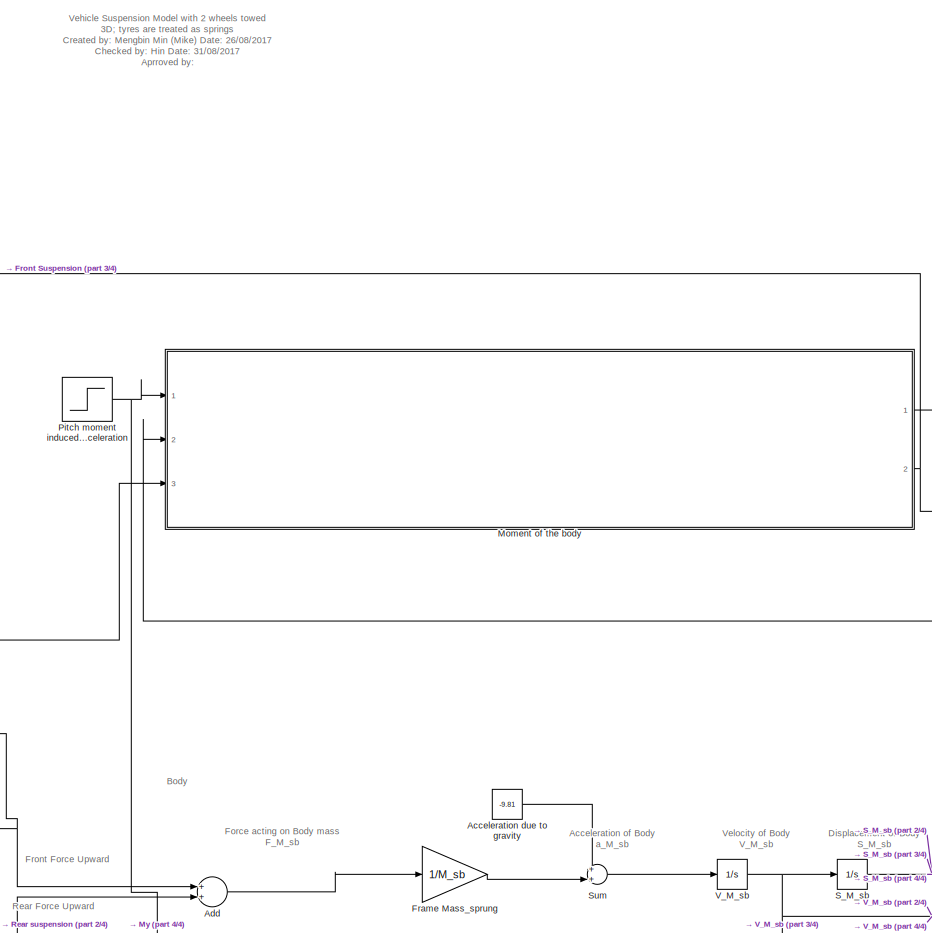
[diagram: root canvas - part 1/4, center side, full height]
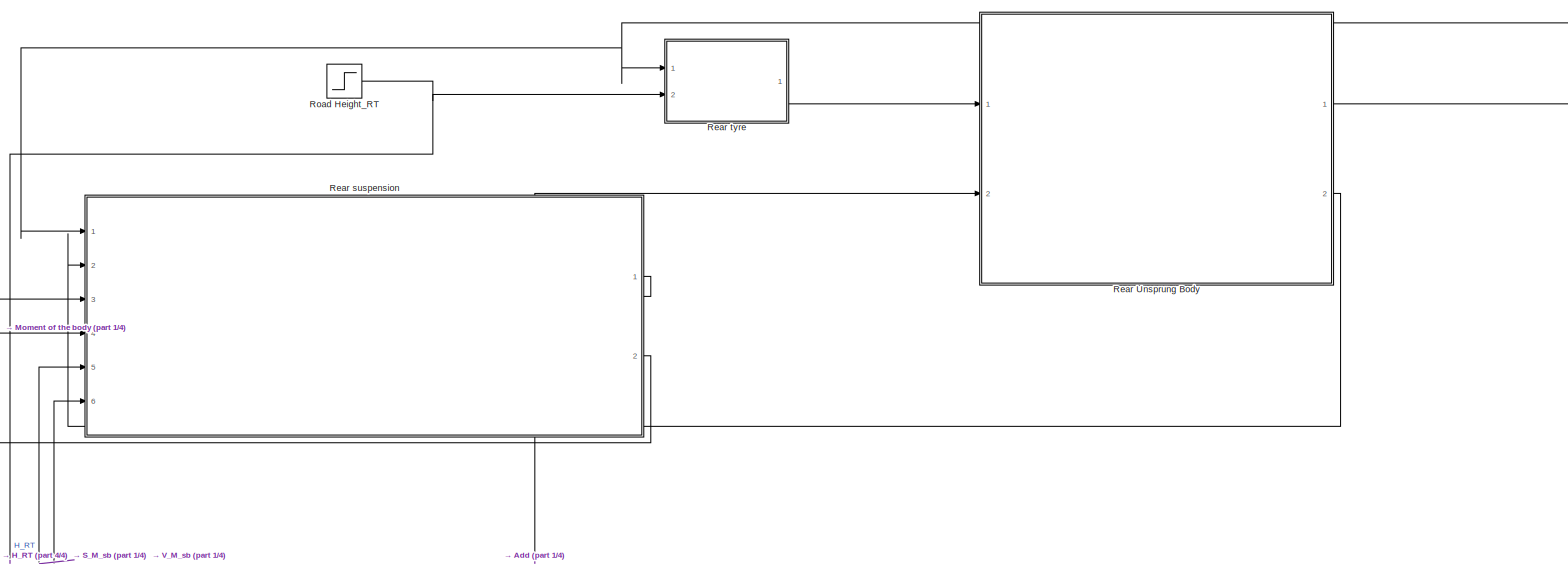
[diagram: root canvas - part 2/4, middle right region]
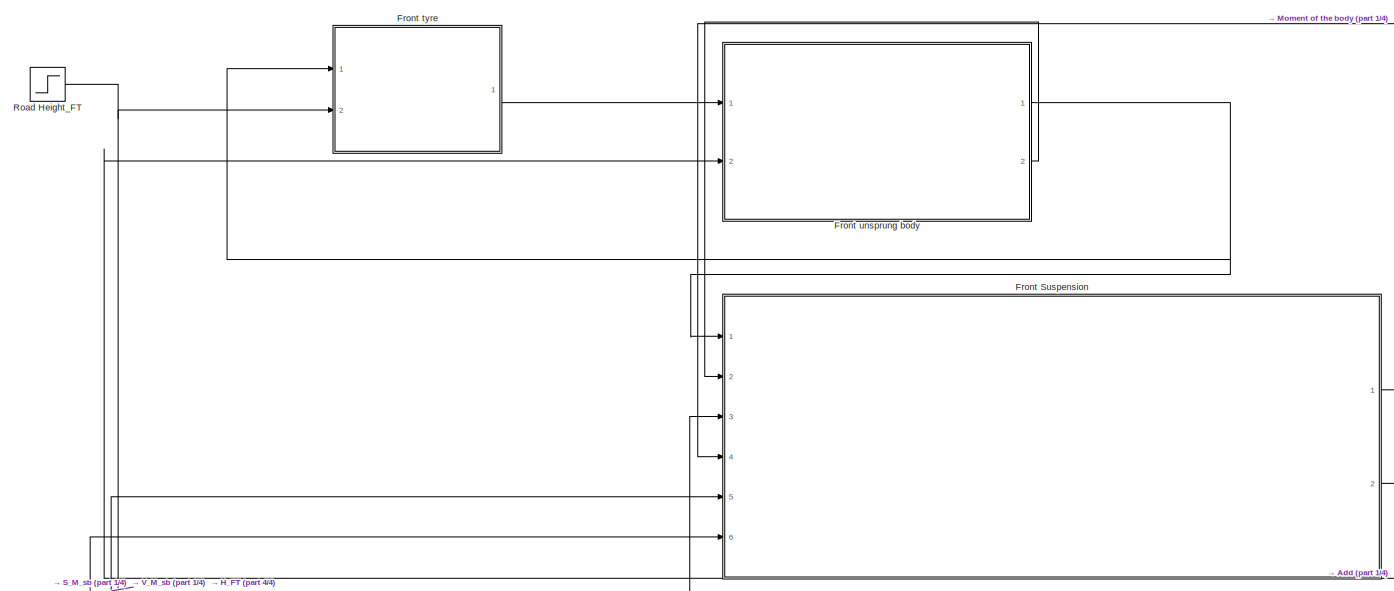
[diagram: root canvas - part 3/4, middle left region]
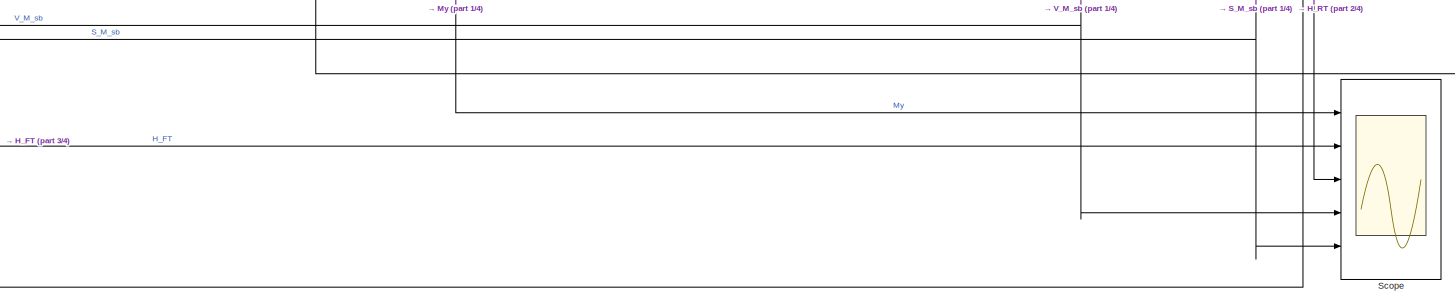
[diagram: root canvas - part 4/4, bottom center region]
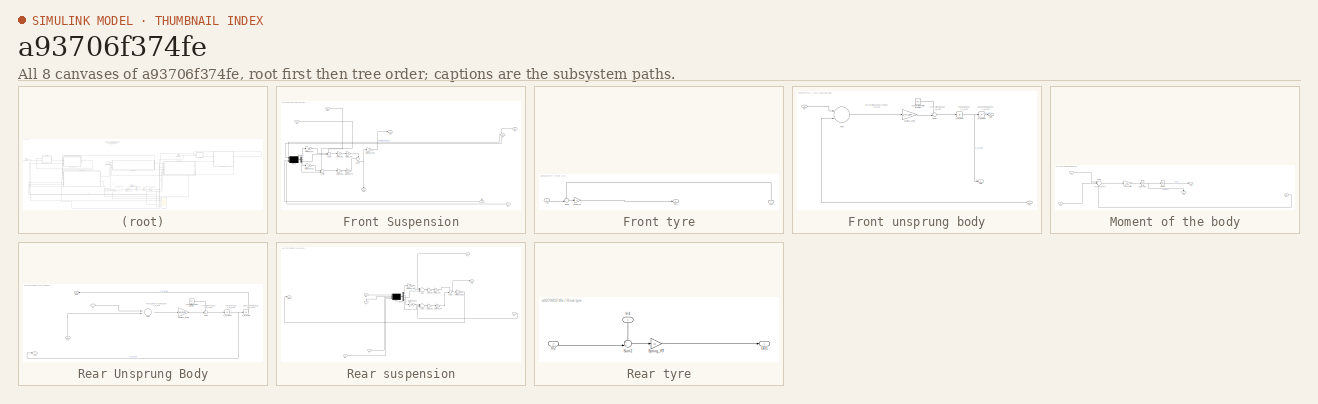
[diagram: thumbnail index - all 8 canvases of the model, root first then tree order]
MODEL slx_a93706f374fe
KIND model
CONFIG AbsTol = auto
CONFIG FixedStep = auto
CONFIG MaxStep = auto
CONFIG MinStep = auto
CONFIG RelTol = 1e-3
CONFIG SampleTimeConstraint = Unconstrained
CONFIG Solver = VariableStepAuto
CONFIG SolverMode = Auto
CONFIG SolverName = VariableStepAuto
CONFIG StartTime = 0.0
CONFIG StopTime = 100
BLOCK [Constant] Acceleration due to gravity
  Value = -9.81
BLOCK [Sum] Add
  InputSameDT = off
  OutDataTypeStr = Inherit: Inherit via internal rule
  Ports = [2, 1]
  SaturateOnIntegerOverflow = off
BLOCK [Gain] Frame Mass_sprung
  Gain = 1/M_sb
  OutDataTypeStr = Inherit: Inherit via internal rule
  ParamDataTypeStr = Inherit: Inherit via internal rule
  SaturateOnIntegerOverflow = off
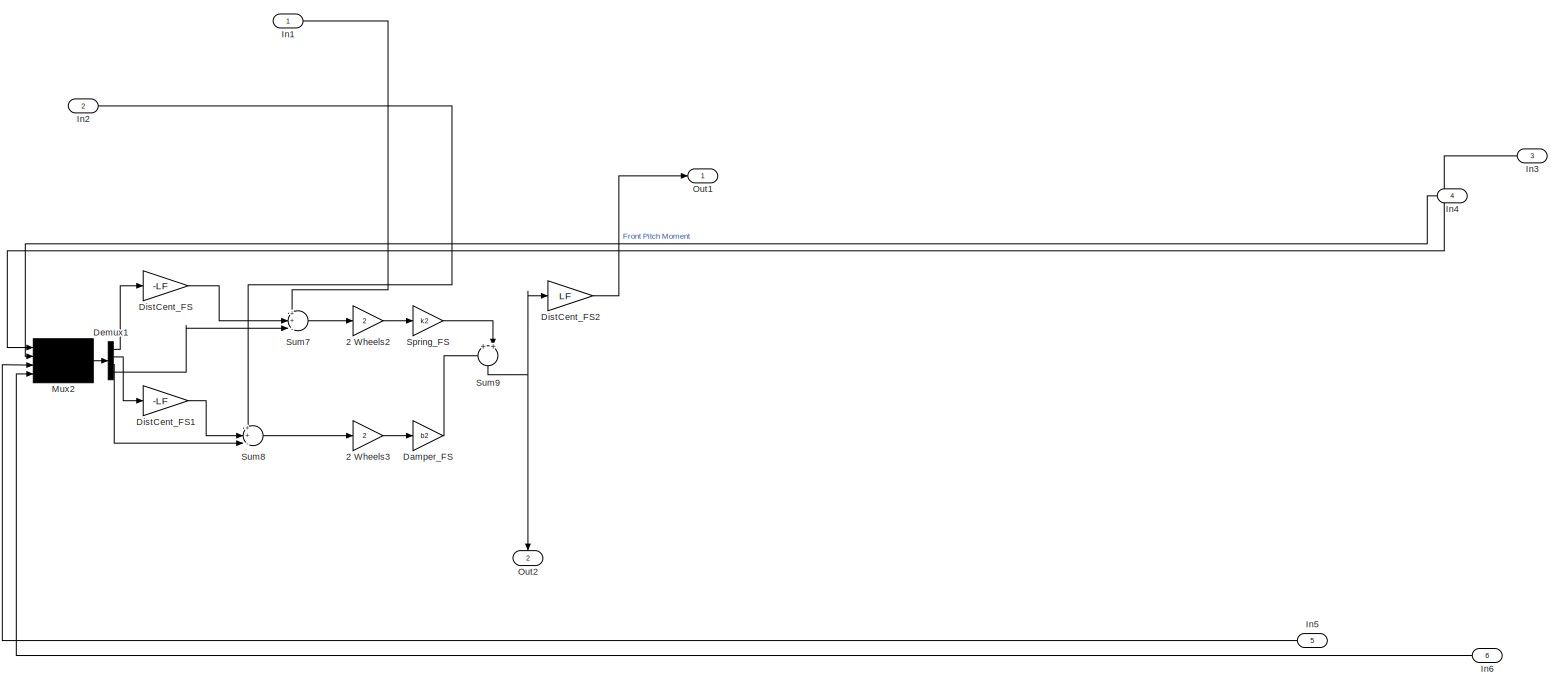
[diagram: Front Suspension - part 1/1, most of the canvas]
BLOCK [SubSystem] Front Suspension
  Ports = [6, 2]
  RequestExecContextInheritance = off
  Variant = off
BLOCK [Gain] Front Suspension/2 Wheels2
  Gain = 2
  OutDataTypeStr = Inherit: Inherit via internal rule
  ParamDataTypeStr = Inherit: Inherit via internal rule
  SaturateOnIntegerOverflow = off
BLOCK [Gain] Front Suspension/2 Wheels3
  Gain = 2
  OutDataTypeStr = Inherit: Inherit via internal rule
  ParamDataTypeStr = Inherit: Inherit via internal rule
  SaturateOnIntegerOverflow = off
BLOCK [Gain] Front Suspension/Damper_FS
  Gain = b2
  OutDataTypeStr = Inherit: Inherit via internal rule
  ParamDataTypeStr = Inherit: Inherit via internal rule
  SaturateOnIntegerOverflow = off
BLOCK [Demux] Front Suspension/Demux1
  DisplayOption = bar
  Ports = [1, 4]
BLOCK [Gain] Front Suspension/DistCent_FS
  Gain = -LF
  OutDataTypeStr = Inherit: Inherit via internal rule
  ParamDataTypeStr = Inherit: Inherit via internal rule
  SaturateOnIntegerOverflow = off
BLOCK [Gain] Front Suspension/DistCent_FS1
  Gain = -LF
  OutDataTypeStr = Inherit: Inherit via internal rule
  ParamDataTypeStr = Inherit: Inherit via internal rule
  SaturateOnIntegerOverflow = off
BLOCK [Gain] Front Suspension/DistCent_FS2
  Gain = LF
  OutDataTypeStr = Inherit: Inherit via internal rule
  ParamDataTypeStr = Inherit: Inherit via internal rule
  SaturateOnIntegerOverflow = off
BLOCK [Inport] Front Suspension/In1
  IconDisplay = Port number
BLOCK [Inport] Front Suspension/In2
  IconDisplay = Port number
  Port = 2
BLOCK [Inport] Front Suspension/In3
  IconDisplay = Port number
  Port = 3
BLOCK [Inport] Front Suspension/In4
  IconDisplay = Port number
  Port = 4
BLOCK [Inport] Front Suspension/In5
  IconDisplay = Port number
  Port = 5
BLOCK [Inport] Front Suspension/In6
  IconDisplay = Port number
  Port = 6
BLOCK [Mux] Front Suspension/Mux2
  DisplayOption = signals
  Ports = [4, 1]
BLOCK [Outport] Front Suspension/Out1
  IconDisplay = Port number
BLOCK [Outport] Front Suspension/Out2
  IconDisplay = Port number
  Port = 2
BLOCK [Gain] Front Suspension/Spring_FS
  Gain = k2
  OutDataTypeStr = Inherit: Inherit via internal rule
  ParamDataTypeStr = Inherit: Inherit via internal rule
  SaturateOnIntegerOverflow = off
BLOCK [Sum] Front Suspension/Sum7
  IconShape = round
  InputSameDT = off
  Inputs = ++-|
  OutDataTypeStr = Inherit: Inherit via internal rule
  Ports = [3, 1]
  SaturateOnIntegerOverflow = off
BLOCK [Sum] Front Suspension/Sum8
  IconShape = round
  InputSameDT = off
  Inputs = ++-|
  OutDataTypeStr = Inherit: Inherit via internal rule
  Ports = [3, 1]
  SaturateOnIntegerOverflow = off
BLOCK [Sum] Front Suspension/Sum9
  IconShape = round
  InputSameDT = off
  Inputs = ++|
  OutDataTypeStr = Inherit: Inherit via internal rule
  Ports = [2, 1]
  SaturateOnIntegerOverflow = off
BLOCK [SubSystem] Front tyre
  Ports = [2, 1]
  RequestExecContextInheritance = off
  Variant = off
BLOCK [Inport] Front tyre/In1
  IconDisplay = Port number
BLOCK [Inport] Front tyre/In2
  IconDisplay = Port number
  Port = 2
BLOCK [Outport] Front tyre/Out1
  IconDisplay = Port number
BLOCK [Gain] Front tyre/Spring_FT
  Gain = k4
  OutDataTypeStr = Inherit: Inherit via internal rule
  ParamDataTypeStr = Inherit: Inherit via internal rule
  SaturateOnIntegerOverflow = off
BLOCK [Sum] Front tyre/Sum5
  IconShape = round
  InputSameDT = off
  Inputs = -+|
  OutDataTypeStr = Inherit: Inherit via internal rule
  Ports = [2, 1]
  SaturateOnIntegerOverflow = off
BLOCK [SubSystem] Front unsprung body
  Ports = [2, 2]
  RequestExecContextInheritance = off
  Variant = off
BLOCK [Constant] Front unsprung body/Acceleration due to gravity2
  Value = -9.81
BLOCK [Sum] Front unsprung body/Add4
  InputSameDT = off
  Inputs = +-
  OutDataTypeStr = Inherit: Inherit via internal rule
  Ports = [2, 1]
  SaturateOnIntegerOverflow = off
BLOCK [Inport] Front unsprung body/In1
  IconDisplay = Port number
BLOCK [Inport] Front unsprung body/In2
  IconDisplay = Port number
  Port = 2
BLOCK [Outport] Front unsprung body/Out1
  IconDisplay = Port number
BLOCK [Outport] Front unsprung body/Out2
  IconDisplay = Port number
  Port = 2
BLOCK [Integrator] Front unsprung body/S_M_UsbF
  Ports = [1, 1]
BLOCK [Sum] Front unsprung body/Sum4
  IconShape = round
  InputSameDT = off
  Inputs = ++|
  OutDataTypeStr = Inherit: Inherit via internal rule
  Ports = [2, 1]
  SaturateOnIntegerOverflow = off
BLOCK [Gain] Front unsprung body/Us Mass_UsbF
  Gain = 1/M_UsbF
  OutDataTypeStr = Inherit: Inherit via internal rule
  ParamDataTypeStr = Inherit: Inherit via internal rule
  SaturateOnIntegerOverflow = off
BLOCK [Integrator] Front unsprung body/V_M_UsbF
  Ports = [1, 1]
BLOCK [SubSystem] Moment of the body
  Ports = [3, 2]
  RequestExecContextInheritance = off
  Variant = off
BLOCK [Gain] Moment of the body/Body Inertia
  Gain = 1/I
BLOCK [Inport] Moment of the body/In1
  IconDisplay = Port number
BLOCK [Inport] Moment of the body/In2
  IconDisplay = Port number
  Port = 2
BLOCK [Inport] Moment of the body/In3
  IconDisplay = Port number
  Port = 3
BLOCK [Outport] Moment of the body/Out1
  IconDisplay = Port number
BLOCK [Outport] Moment of the body/Out2
  IconDisplay = Port number
  Port = 2
BLOCK [Sum] Moment of the body/Sum6
  IconShape = round
  Inputs = ||-+-
  Ports = [3, 1]
BLOCK [Integrator] Moment of the body/THETA
  InitialCondition = -8.7e-20
  Ports = [1, 1]
BLOCK [Integrator] Moment of the body/THETAdot
  InitialCondition = 8.04e-28
  Ports = [1, 1]
BLOCK [Step] Pitch moment induced by vehicle acceleration
  After = 100
  SampleTime = 0
BLOCK [SubSystem] Rear Unsprung Body
  Ports = [2, 2]
  RequestExecContextInheritance = off
  Variant = off
BLOCK [Constant] Rear Unsprung Body/Acceleration due to gravity1
  Value = -9.81
BLOCK [Sum] Rear Unsprung Body/Add3
  InputSameDT = off
  Inputs = +-
  OutDataTypeStr = Inherit: Inherit via internal rule
  Ports = [2, 1]
  SaturateOnIntegerOverflow = off
BLOCK [Inport] Rear Unsprung Body/In1
  IconDisplay = Port number
BLOCK [Inport] Rear Unsprung Body/In2
  IconDisplay = Port number
  Port = 2
BLOCK [Outport] Rear Unsprung Body/Out1
  IconDisplay = Port number
BLOCK [Outport] Rear Unsprung Body/Out2
  IconDisplay = Port number
  Port = 2
BLOCK [Integrator] Rear Unsprung Body/S_M_UsbR
  Ports = [1, 1]
BLOCK [Sum] Rear Unsprung Body/Sum1
  IconShape = round
  InputSameDT = off
  Inputs = ++|
  OutDataTypeStr = Inherit: Inherit via internal rule
  Ports = [2, 1]
  SaturateOnIntegerOverflow = off
BLOCK [Gain] Rear Unsprung Body/Us Mass_UsbR
  Gain = 1/M_UsbR
  OutDataTypeStr = Inherit: Inherit via internal rule
  ParamDataTypeStr = Inherit: Inherit via internal rule
  SaturateOnIntegerOverflow = off
BLOCK [Integrator] Rear Unsprung Body/V_M_UsbR
  Ports = [1, 1]
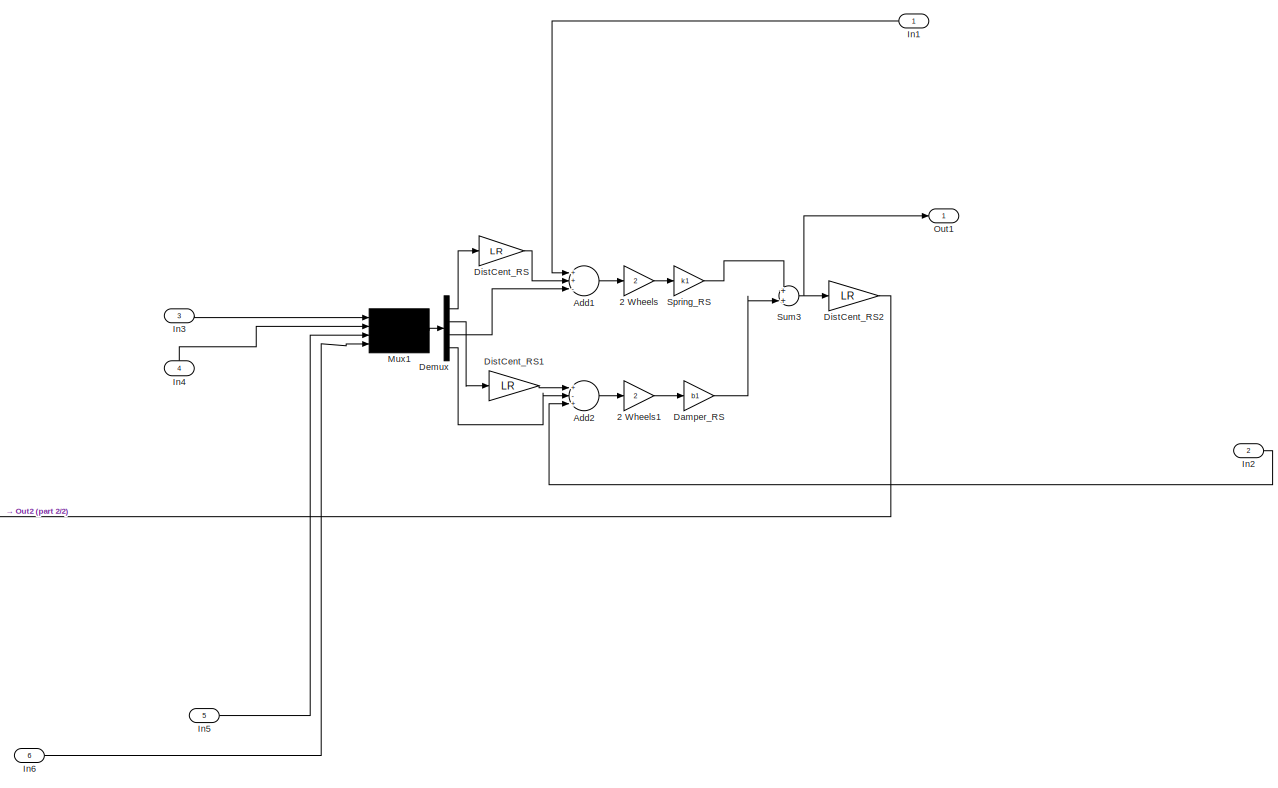
[diagram: Rear suspension - part 1/2, most of the canvas]
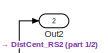
[diagram: Rear suspension - part 2/2, middle left region]
BLOCK [SubSystem] Rear suspension
  Ports = [6, 2]
  RequestExecContextInheritance = off
  Variant = off
BLOCK [Gain] Rear suspension/2 Wheels
  Gain = 2
  OutDataTypeStr = Inherit: Inherit via internal rule
  ParamDataTypeStr = Inherit: Inherit via internal rule
  SaturateOnIntegerOverflow = off
BLOCK [Gain] Rear suspension/2 Wheels1
  Gain = 2
  OutDataTypeStr = Inherit: Inherit via internal rule
  ParamDataTypeStr = Inherit: Inherit via internal rule
  SaturateOnIntegerOverflow = off
BLOCK [Sum] Rear suspension/Add1
  InputSameDT = off
  Inputs = ++-
  OutDataTypeStr = Inherit: Inherit via internal rule
  Ports = [3, 1]
  SaturateOnIntegerOverflow = off
BLOCK [Sum] Rear suspension/Add2
  InputSameDT = off
  Inputs = +-+
  OutDataTypeStr = Inherit: Inherit via internal rule
  Ports = [3, 1]
  SaturateOnIntegerOverflow = off
BLOCK [Gain] Rear suspension/Damper_RS
  Gain = b1
  OutDataTypeStr = Inherit: Inherit via internal rule
  ParamDataTypeStr = Inherit: Inherit via internal rule
  SaturateOnIntegerOverflow = off
BLOCK [Demux] Rear suspension/Demux
  DisplayOption = bar
  Ports = [1, 4]
BLOCK [Gain] Rear suspension/DistCent_RS
  Gain = LR
  OutDataTypeStr = Inherit: Inherit via internal rule
  ParamDataTypeStr = Inherit: Inherit via internal rule
  SaturateOnIntegerOverflow = off
BLOCK [Gain] Rear suspension/DistCent_RS1
  Gain = LR
  OutDataTypeStr = Inherit: Inherit via internal rule
  ParamDataTypeStr = Inherit: Inherit via internal rule
  SaturateOnIntegerOverflow = off
BLOCK [Gain] Rear suspension/DistCent_RS2
  Gain = LR
  OutDataTypeStr = Inherit: Inherit via internal rule
  ParamDataTypeStr = Inherit: Inherit via internal rule
  SaturateOnIntegerOverflow = off
BLOCK [Inport] Rear suspension/In1
  IconDisplay = Port number
BLOCK [Inport] Rear suspension/In2
  IconDisplay = Port number
  Port = 2
BLOCK [Inport] Rear suspension/In3
  IconDisplay = Port number
  Port = 3
BLOCK [Inport] Rear suspension/In4
  IconDisplay = Port number
  Port = 4
BLOCK [Inport] Rear suspension/In5
  IconDisplay = Port number
  Port = 5
BLOCK [Inport] Rear suspension/In6
  IconDisplay = Port number
  Port = 6
BLOCK [Mux] Rear suspension/Mux1
  DisplayOption = signals
  Ports = [4, 1]
BLOCK [Outport] Rear suspension/Out1
  IconDisplay = Port number
BLOCK [Outport] Rear suspension/Out2
  IconDisplay = Port number
  Port = 2
BLOCK [Gain] Rear suspension/Spring_RS 
  Gain = k1
  OutDataTypeStr = Inherit: Inherit via internal rule
  ParamDataTypeStr = Inherit: Inherit via internal rule
  SaturateOnIntegerOverflow = off
BLOCK [Sum] Rear suspension/Sum3
  IconShape = round
  InputSameDT = off
  Inputs = ++|
  OutDataTypeStr = Inherit: Inherit via internal rule
  Ports = [2, 1]
  SaturateOnIntegerOverflow = off
BLOCK [SubSystem] Rear tyre
  Ports = [2, 1]
  RequestExecContextInheritance = off
  Variant = off
BLOCK [Inport] Rear tyre/In1
  IconDisplay = Port number
BLOCK [Inport] Rear tyre/In2
  IconDisplay = Port number
  Port = 2
BLOCK [Outport] Rear tyre/Out1
  IconDisplay = Port number
BLOCK [Gain] Rear tyre/Spring_RT
  Gain = k3
  OutDataTypeStr = Inherit: Inherit via internal rule
  ParamDataTypeStr = Inherit: Inherit via internal rule
  SaturateOnIntegerOverflow = off
BLOCK [Sum] Rear tyre/Sum2
  IconShape = round
  InputSameDT = off
  Inputs = -+|
  OutDataTypeStr = Inherit: Inherit via internal rule
  Ports = [2, 1]
  SaturateOnIntegerOverflow = off
BLOCK [Step] Road Height_FT
  After = 0.05
  SampleTime = 0
  Time = 2
BLOCK [Step] Road Height_RT
  After = 0.05
  SampleTime = 0
  Time = 4
BLOCK [Integrator] S_M_sb
  Ports = [1, 1]
BLOCK [Scope] Scope
  NumInputPorts = 5
  Ports = [5]
  ScopeSpecificationString = Simulink.scopes.TimeScopeBlockCfg('CurrentConfiguration', extmgr.ConfigurationSet(extmgr.Configuration('Core','General UI',true),extmgr.Configuration('Core','Source UI',true),extmgr.Configuration('Sources','WiredSimulink',true),extmgr.Configuration('Visuals','Time Domain',true,'SerializedDisplays',{struct('MinYLimReal','-12.5','MaxYLimReal','112.5','YLabelReal','','MinYLimMag','0.00000','MaxYLimMa...<+4072ch>
BLOCK [Sum] Sum
  IconShape = round
  InputSameDT = off
  Inputs = ++|
  OutDataTypeStr = Inherit: Inherit via internal rule
  Ports = [2, 1]
  SaturateOnIntegerOverflow = off
BLOCK [Integrator] V_M_sb
  Ports = [1, 1]
ANNOTATION (root): Vehicle Suspension Model with 2 wheels towed 3D; tyres are treated as springs Created by: Mengbin Min (Mike) Date: 26/08/2017 Checked by: Hin Date: 31/08/2017 Aprroved by:
ANNOTATION (root): Acceleration of Body a_M_sb
ANNOTATION (root): Body
ANNOTATION (root): Displacement of Body S_M_sb
ANNOTATION (root): Force acting on Body mass F_M_sb
ANNOTATION (root): Front Force Upward
ANNOTATION (root): Rear Force Upward
ANNOTATION (root): Velocity of Body V_M_sb
ANNOTATION Front unsprung body: Acceleration of Us Body A_M_UsbF
ANNOTATION Front unsprung body: Displacement of Us Body S_M_UsbF
ANNOTATION Front unsprung body: Force acting on UnSprung mass F_M_Usb
ANNOTATION Front unsprung body: Velocity of Us Body V_M_UsbF
ANNOTATION Moment of the body: Rear Pitch Moment
ANNOTATION Rear Unsprung Body: Acceleration of Us Body A_M_UsbR
ANNOTATION Rear Unsprung Body: Displacement of Us Body S_M_UsbR
ANNOTATION Rear Unsprung Body: Force acting on UnSprung mass F_M_Usb
ANNOTATION Rear Unsprung Body: Velocity of Us Body V_M_UsbR
LINE Acceleration due to gravity:1 -> Sum:1
LINE Add:1 -> Frame Mass_sprung:1
LINE Frame Mass_sprung:1 -> Sum:2
LINE Front Suspension/2 Wheels2:1 -> Front Suspension/Spring_FS:1
LINE Front Suspension/2 Wheels3:1 -> Front Suspension/Damper_FS:1
LINE Front Suspension/Damper_FS:1 -> Front Suspension/Sum9:1
LINE Front Suspension/Demux1:1 -> Front Suspension/DistCent_FS:1
LINE Front Suspension/Demux1:2 -> Front Suspension/DistCent_FS1:1
LINE Front Suspension/Demux1:3 -> Front Suspension/Sum8:3
LINE Front Suspension/Demux1:4 -> Front Suspension/Sum7:3
LINE Front Suspension/DistCent_FS1:1 -> Front Suspension/Sum8:2
LINE Front Suspension/DistCent_FS2:1 -> Front Suspension/Out1:1
LINE Front Suspension/DistCent_FS:1 -> Front Suspension/Sum7:2
LINE Front Suspension/In1:1 -> Front Suspension/Sum7:1
LINE Front Suspension/In2:1 -> Front Suspension/Sum8:1
LINE Front Suspension/In3:1 -> Front Suspension/Mux2:1
LINE Front Suspension/In4:1 -> Front Suspension/Mux2:2
LINE Front Suspension/In5:1 -> Front Suspension/Mux2:3
LINE Front Suspension/In6:1 -> Front Suspension/Mux2:4
LINE Front Suspension/Mux2:1 -> Front Suspension/Demux1:1
LINE Front Suspension/Spring_FS:1 -> Front Suspension/Sum9:2
LINE Front Suspension/Sum7:1 -> Front Suspension/2 Wheels2:1
LINE Front Suspension/Sum8:1 -> Front Suspension/2 Wheels3:1
NET Front Suspension/Sum9:1 -> Front Suspension/DistCent_FS2:1, Front Suspension/Out2:1
LINE Front Suspension:1 -> Moment of the body:3
NET Front Suspension:2 -> Add:1, Front unsprung body:2
LINE Front tyre/In1:1 -> Front tyre/Sum5:1
LINE Front tyre/In2:1 -> Front tyre/Sum5:2
LINE Front tyre/Spring_FT:1 -> Front tyre/Out1:1
LINE Front tyre/Sum5:1 -> Front tyre/Spring_FT:1
LINE Front tyre:1 -> Front unsprung body:1
LINE Front unsprung body/Acceleration due to gravity2:1 -> Front unsprung body/Sum4:1
LINE Front unsprung body/Add4:1 -> Front unsprung body/Us Mass_UsbF:1
LINE Front unsprung body/In1:1 -> Front unsprung body/Add4:1
LINE Front unsprung body/In2:1 -> Front unsprung body/Add4:2
LINE Front unsprung body/S_M_UsbF:1 -> Front unsprung body/Out1:1
LINE Front unsprung body/Sum4:1 -> Front unsprung body/V_M_UsbF:1
LINE Front unsprung body/Us Mass_UsbF:1 -> Front unsprung body/Sum4:2
NET Front unsprung body/V_M_UsbF:1 -> Front unsprung body/Out2:1, Front unsprung body/S_M_UsbF:1
NET Front unsprung body:1 -> Front Suspension:1, Front tyre:1
LINE Front unsprung body:2 -> Front Suspension:2
LINE Moment of the body/Body Inertia:1 -> Moment of the body/THETAdot:1
LINE Moment of the body/In1:1 -> Moment of the body/Sum6:1
LINE Moment of the body/In2:1 -> Moment of the body/Sum6:3
LINE Moment of the body/In3:1 -> Moment of the body/Sum6:2
LINE Moment of the body/Sum6:1 -> Moment of the body/Body Inertia:1
LINE Moment of the body/THETA:1 -> Moment of the body/Out1:1
NET Moment of the body/THETAdot:1 -> Moment of the body/Out2:1, Moment of the body/THETA:1
NET Moment of the body:1 -> Front Suspension:3, Rear suspension:3
NET Moment of the body:2 -> Front Suspension:4, Rear suspension:4
NET Pitch moment induced by vehicle acceleration:1 -> Moment of the body:1, Scope:1
LINE Rear Unsprung Body/Acceleration due to gravity1:1 -> Rear Unsprung Body/Sum1:1
LINE Rear Unsprung Body/Add3:1 -> Rear Unsprung Body/Us Mass_UsbR:1
LINE Rear Unsprung Body/In1:1 -> Rear Unsprung Body/Add3:1
LINE Rear Unsprung Body/In2:1 -> Rear Unsprung Body/Add3:2
LINE Rear Unsprung Body/S_M_UsbR:1 -> Rear Unsprung Body/Out1:1
LINE Rear Unsprung Body/Sum1:1 -> Rear Unsprung Body/V_M_UsbR:1
LINE Rear Unsprung Body/Us Mass_UsbR:1 -> Rear Unsprung Body/Sum1:2
NET Rear Unsprung Body/V_M_UsbR:1 -> Rear Unsprung Body/Out2:1, Rear Unsprung Body/S_M_UsbR:1
NET Rear Unsprung Body:1 -> Rear suspension:1, Rear tyre:1
LINE Rear Unsprung Body:2 -> Rear suspension:2
LINE Rear suspension/2 Wheels1:1 -> Rear suspension/Damper_RS:1
LINE Rear suspension/2 Wheels:1 -> Rear suspension/Spring_RS :1
LINE Rear suspension/Add1:1 -> Rear suspension/2 Wheels:1
LINE Rear suspension/Add2:1 -> Rear suspension/2 Wheels1:1
LINE Rear suspension/Damper_RS:1 -> Rear suspension/Sum3:2
LINE Rear suspension/Demux:1 -> Rear suspension/DistCent_RS:1
LINE Rear suspension/Demux:2 -> Rear suspension/DistCent_RS1:1
LINE Rear suspension/Demux:3 -> Rear suspension/Add1:3
LINE Rear suspension/Demux:4 -> Rear suspension/Add2:2
LINE Rear suspension/DistCent_RS1:1 -> Rear suspension/Add2:1
LINE Rear suspension/DistCent_RS2:1 -> Rear suspension/Out2:1
LINE Rear suspension/DistCent_RS:1 -> Rear suspension/Add1:2
LINE Rear suspension/In1:1 -> Rear suspension/Add1:1
LINE Rear suspension/In2:1 -> Rear suspension/Add2:3
LINE Rear suspension/In3:1 -> Rear suspension/Mux1:1
LINE Rear suspension/In4:1 -> Rear suspension/Mux1:2
LINE Rear suspension/In5:1 -> Rear suspension/Mux1:3
LINE Rear suspension/In6:1 -> Rear suspension/Mux1:4
LINE Rear suspension/Mux1:1 -> Rear suspension/Demux:1
LINE Rear suspension/Spring_RS :1 -> Rear suspension/Sum3:1
NET Rear suspension/Sum3:1 -> Rear suspension/DistCent_RS2:1, Rear suspension/Out1:1
NET Rear suspension:1 -> Add:2, Rear Unsprung Body:2
LINE Rear suspension:2 -> Moment of the body:2
LINE Rear tyre/In1:1 -> Rear tyre/Sum2:1
LINE Rear tyre/In2:1 -> Rear tyre/Sum2:2
LINE Rear tyre/Spring_RT:1 -> Rear tyre/Out1:1
LINE Rear tyre/Sum2:1 -> Rear tyre/Spring_RT:1
LINE Rear tyre:1 -> Rear Unsprung Body:1
NET Road Height_FT:1 -> Front tyre:2, Scope:2
NET Road Height_RT:1 -> Rear tyre:2, Scope:3
NET S_M_sb:1 -> Front Suspension:6, Rear suspension:5, Scope:5
LINE Sum:1 -> V_M_sb:1
NET V_M_sb:1 -> Front Suspension:5, Rear suspension:6, S_M_sb:1, Scope:4
note: NET lines group one-source signal fan-out (src -> all destinations, sorted); 1:1 wires keep LINE
